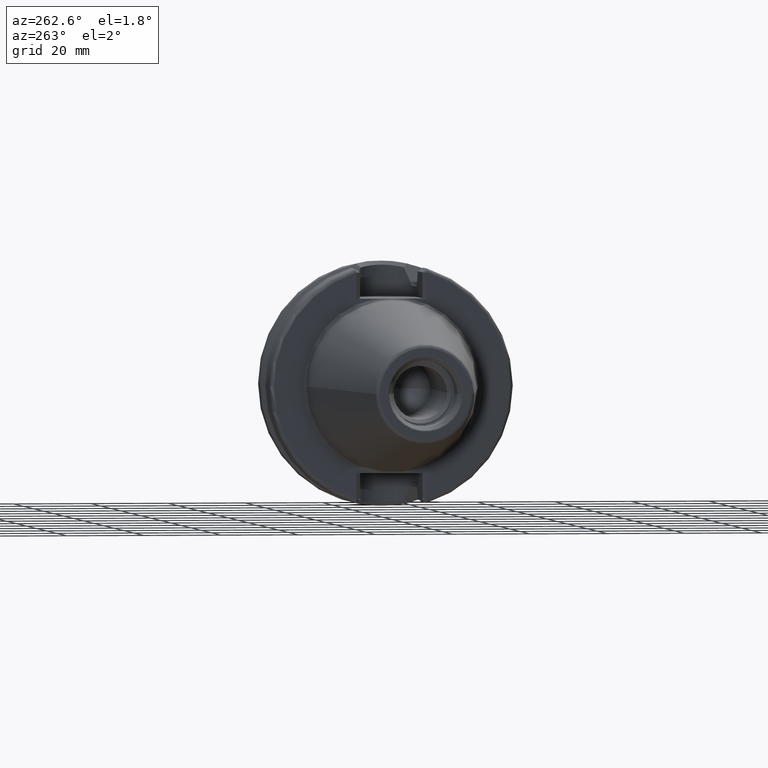
[diagram: clean part render]
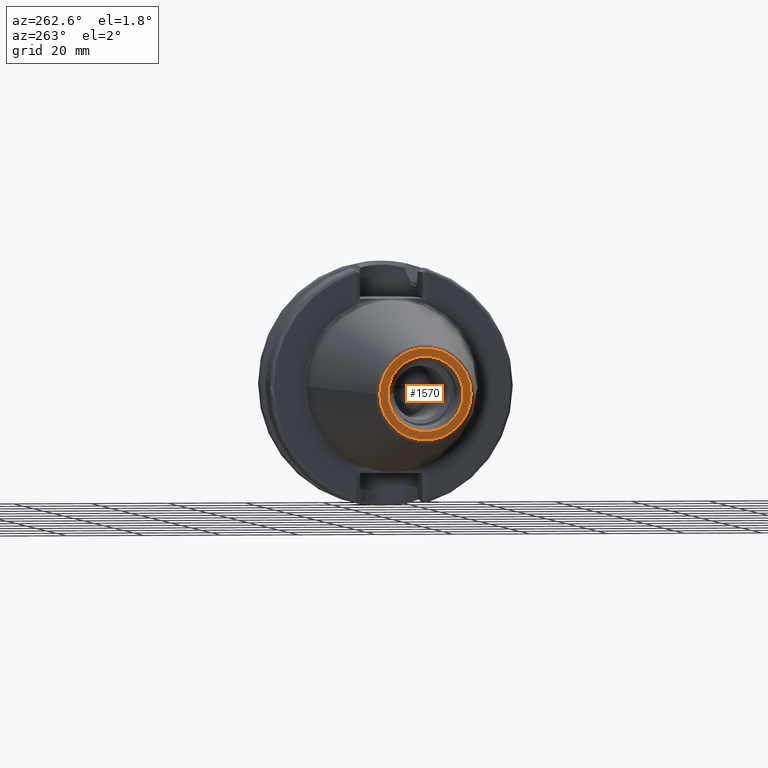
[diagram: same view with one face highlighted and labeled with its STEP entity id]
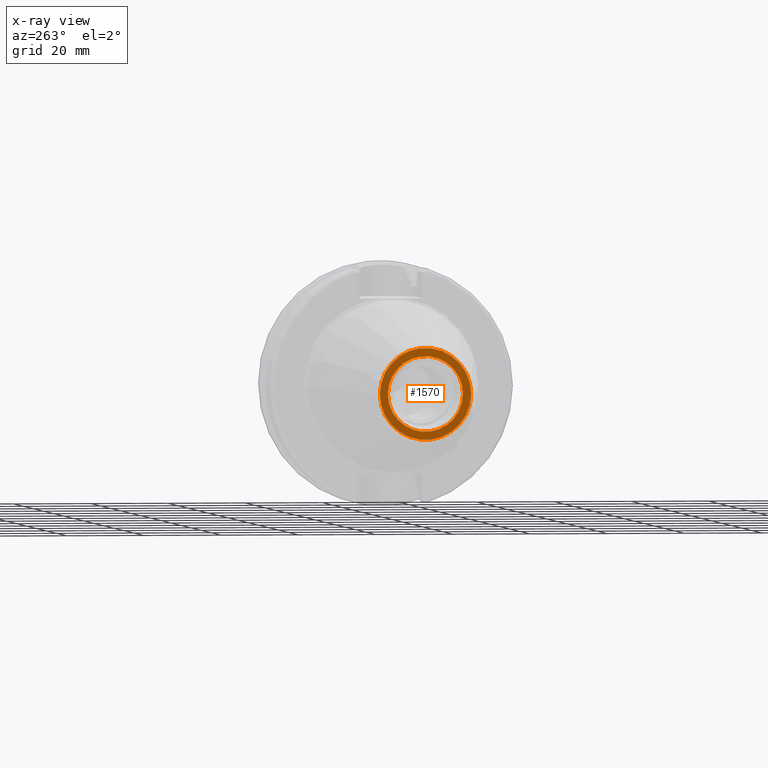
[diagram: x-ray of the same camera — body ghosted, the highlighted face saturated]
A machine part, auxiliary view. The second image highlights one B-rep face of the part: STEP entity #1570.
The next image is the same camera in x-ray: the body ghosted, the highlighted face saturated — about 0% of this face is hidden behind the body in this view.
In plain terms, the highlighted planar face has unit normal (1, 0, 0).
Its self-contained STEP definition (entity closure, byte-faithful):
#2=CARTESIAN_POINT('',(-6.54E1,0.E0,0.E0));
#3=DIRECTION('',(-1.E0,0.E0,0.E0));
#4=DIRECTION('',(0.E0,1.E0,0.E0));
#5=AXIS2_PLACEMENT_3D('',#2,#3,#4);
#7=CARTESIAN_POINT('',(-6.54E1,0.E0,0.E0));
#8=DIRECTION('',(1.E0,0.E0,0.E0));
#9=DIRECTION('',(0.E0,1.E0,0.E0));
#10=AXIS2_PLACEMENT_3D('',#7,#8,#9);
#12=CARTESIAN_POINT('',(-6.54E1,0.E0,0.E0));
#13=DIRECTION('',(1.E0,0.E0,0.E0));
#14=DIRECTION('',(0.E0,1.E0,0.E0));
#15=AXIS2_PLACEMENT_3D('',#12,#13,#14);
#17=CARTESIAN_POINT('',(-6.54E1,0.E0,0.E0));
#18=DIRECTION('',(1.E0,0.E0,0.E0));
#19=DIRECTION('',(0.E0,-1.E0,0.E0));
#20=AXIS2_PLACEMENT_3D('',#17,#18,#19);
#1295=CARTESIAN_POINT('',(-6.54E1,1.182197113897E1,0.E0));
#1297=VERTEX_POINT('',#1295);
#1299=CARTESIAN_POINT('',(-6.54E1,-1.182197113897E1,0.E0));
#1301=VERTEX_POINT('',#1299);
#1424=CARTESIAN_POINT('',(-6.54E1,9.730940107676E0,0.E0));
#1425=CARTESIAN_POINT('',(-6.54E1,-9.730940107676E0,0.E0));
#1426=VERTEX_POINT('',#1424);
#1427=VERTEX_POINT('',#1425);
#1553=CARTESIAN_POINT('',(-6.54E1,0.E0,0.E0));
#1554=DIRECTION('',(1.E0,0.E0,0.E0));
#1555=DIRECTION('',(0.E0,-1.E0,0.E0));
#1556=AXIS2_PLACEMENT_3D('',#1553,#1554,#1555);
#1557=PLANE('',#1556);
#1559=ORIENTED_EDGE('',*,*,#1558,.F.);
#1561=ORIENTED_EDGE('',*,*,#1560,.T.);
#1562=EDGE_LOOP('',(#1559,#1561));
#1563=FACE_OUTER_BOUND('',#1562,.F.);
#1565=ORIENTED_EDGE('',*,*,#1564,.F.);
#1567=ORIENTED_EDGE('',*,*,#1566,.F.);
#1568=EDGE_LOOP('',(#1565,#1567));
#1569=FACE_BOUND('',#1568,.F.);
#1570=ADVANCED_FACE('',(#1563,#1569),#1557,.F.);
#6=CIRCLE('',#5,1.182197113897E1);
#11=CIRCLE('',#10,1.182197113897E1);
#16=CIRCLE('',#15,9.730940107676E0);
#21=CIRCLE('',#20,9.730940107676E0);
#1558=EDGE_CURVE('',#1297,#1301,#6,.T.);
#1560=EDGE_CURVE('',#1297,#1301,#11,.T.);
#1564=EDGE_CURVE('',#1426,#1427,#16,.T.);
#1566=EDGE_CURVE('',#1427,#1426,#21,.T.);